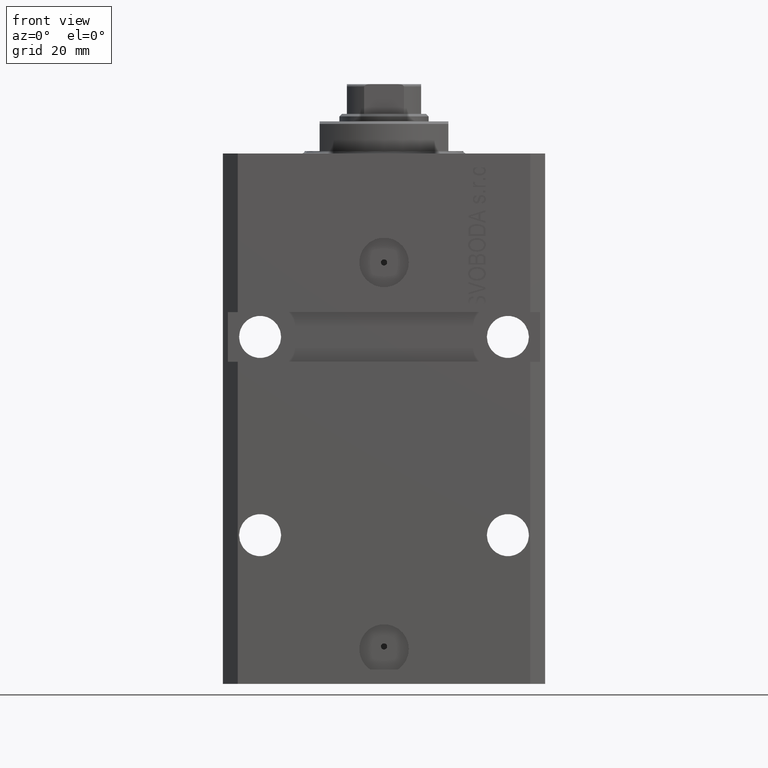
[diagram: clean part render]
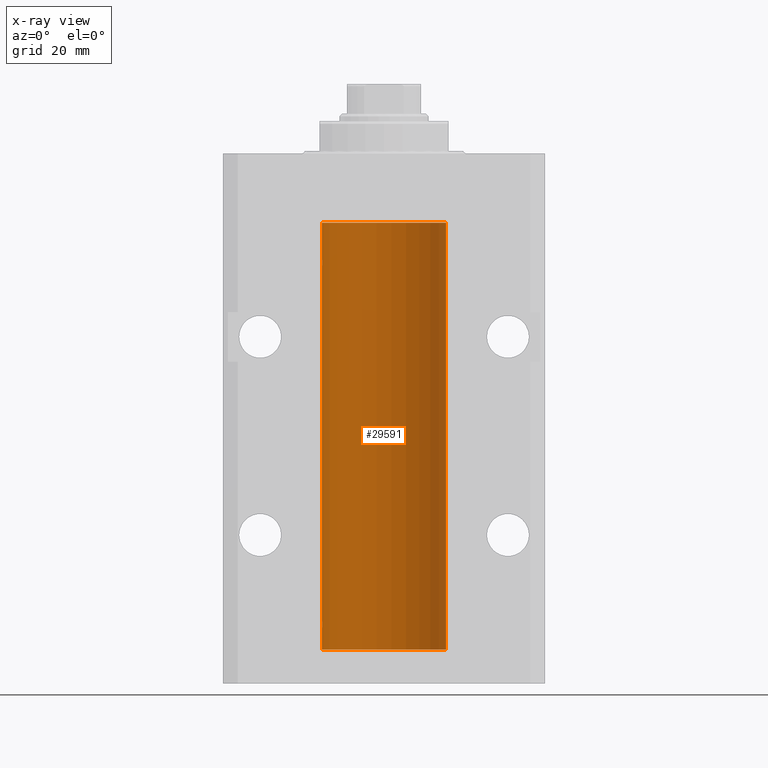
[diagram: x-ray — body ghosted, one internal face saturated and labeled with its STEP entity id]
A machine part, front view, then the same camera in x-ray: the body is ghosted and one INTERNAL B-rep face — a face not visible from any outside direction — is saturated and labeled: STEP entity #29591.
In plain terms, the highlighted cylindrical surface (partial cylindrical patch) has radius 12.5 mm, axis along (0, 0, 1).
Its self-contained STEP definition (entity closure, byte-faithful):
#260 = CARTESIAN_POINT ( 'NONE',  ( -12.50000000000000000, -1.522152011595579853E-14, -94.37500000000000000 ) ) ;
#1391 = CARTESIAN_POINT ( 'NONE',  ( -12.50000000000000000, 1.530808498934191521E-15, -13.99999999999999822 ) ) ;
#1940 = CARTESIAN_POINT ( 'NONE',  ( -12.49422197749724006, 0.3843754434364375916, -21.50047099568095277 ) ) ;
#3795 = LINE ( 'NONE', #33207, #24060 ) ;
#3899 = CARTESIAN_POINT ( 'NONE',  ( -12.49631005746706514, 0.3253680783018457756, -95.55856740465388555 ) ) ;
#5137 = EDGE_LOOP ( 'NONE', ( #15664, #40924, #43161, #22798, #29875, #26244, #45406, #41588 ) ) ;
#6735 = CYLINDRICAL_SURFACE ( 'NONE', #38576, 12.50000000000000000 ) ;
#7659 = EDGE_CURVE ( 'NONE', #29865, #19816, #25753, .T. ) ;
#7983 = CARTESIAN_POINT ( 'NONE',  ( -12.49915784441387068, 0.1636601911727894876, -94.39126818989429069 ) ) ;
#8238 = CARTESIAN_POINT ( 'NONE',  ( -12.48436376893640443, 0.6250290278979917513, -22.08132082824473486 ) ) ;
#8474 = CARTESIAN_POINT ( 'NONE',  ( -12.49625855304194033, 0.3150454781037993479, -94.45402800297488000 ) ) ;
#9100 = VECTOR ( 'NONE', #43386, 1000.000000000000000 ) ;
#10817 = DIRECTION ( 'NONE',  ( -0.000000000000000000, -0.000000000000000000, 1.000000000000000000 ) ) ;
#12348 = CARTESIAN_POINT ( 'NONE',  ( -12.49915784441386890, 0.1636601911727947889, -21.39126818989430490 ) ) ;
#13057 = CARTESIAN_POINT ( 'NONE',  ( -12.49625855304193678, 0.3150454781038042329, -21.45402800297484802 ) ) ;
#13417 = CARTESIAN_POINT ( 'NONE',  ( 12.50000000000000000, 0.000000000000000000, -100.0999999999999943 ) ) ;
#14112 = LINE ( 'NONE', #13417, #45395 ) ;
#14187 = EDGE_CURVE ( 'NONE', #16167, #19911, #35853, .T. ) ;
#15479 = CARTESIAN_POINT ( 'NONE',  ( -12.48520330846397997, 0.6088355886774070580, -95.16325431852561678 ) ) ;
#15664 = ORIENTED_EDGE ( 'NONE', *, *, #19358, .F. ) ;
#16167 = VERTEX_POINT ( 'NONE', #37960 ) ;
#16204 = CARTESIAN_POINT ( 'NONE',  ( -12.50000000000017941, 3.883381646606358354E-13, -22.62500000000358824 ) ) ;
#16666 = CARTESIAN_POINT ( 'NONE',  ( -12.48809959379011403, 0.5462151254764975317, -22.31461370481611795 ) ) ;
#17360 = CARTESIAN_POINT ( 'NONE',  ( 0.000000000000000000, 0.000000000000000000, -100.0999999999999943 ) ) ;
#17688 = VERTEX_POINT ( 'NONE', #32449 ) ;
#19291 = VERTEX_POINT ( 'NONE', #20051 ) ;
#19358 = EDGE_CURVE ( 'NONE', #19911, #19291, #36866, .T. ) ;
#19360 = CARTESIAN_POINT ( 'NONE',  ( -12.49999999999999289, 0.1631761135151241215, -22.62499999999984013 ) ) ;
#19816 = VERTEX_POINT ( 'NONE', #1391 ) ;
#19911 = VERTEX_POINT ( 'NONE', #35138 ) ;
#20051 = CARTESIAN_POINT ( 'NONE',  ( -12.50000000000017941, 3.883381774819353300E-13, -95.62500000000359535 ) ) ;
#20289 = CARTESIAN_POINT ( 'NONE',  ( -12.50000000000000000, 0.08260426088729219685, -21.37500000000000000 ) ) ;
#20835 = CARTESIAN_POINT ( 'NONE',  ( 0.000000000000000000, 0.000000000000000000, -100.0999999999999943 ) ) ;
#21226 = CARTESIAN_POINT ( 'NONE',  ( -12.50000000000000000, 1.530808498934191521E-15, -100.0999999999999943 ) ) ;
#22278 = CARTESIAN_POINT ( 'NONE',  ( 0.000000000000000000, 0.000000000000000000, -13.99999999999999822 ) ) ;
#22709 = CARTESIAN_POINT ( 'NONE',  ( -12.49999999999999112, 0.1631761135151224562, -95.62499999999980105 ) ) ;
#22798 = ORIENTED_EDGE ( 'NONE', *, *, #7659, .T. ) ;
#23193 = CARTESIAN_POINT ( 'NONE',  ( -12.50000000000017941, 3.883381774819353300E-13, -95.62500000000359535 ) ) ;
#24016 = EDGE_CURVE ( 'NONE', #16167, #29865, #14112, .T. ) ;
#24060 = VECTOR ( 'NONE', #10817, 1000.000000000000000 ) ;
#25753 = CIRCLE ( 'NONE', #37304, 12.50000000000000000 ) ;
#26090 = CARTESIAN_POINT ( 'NONE',  ( -12.48436813453758631, 0.6249418250771134886, -94.83668996798924411 ) ) ;
#26140 = EDGE_CURVE ( 'NONE', #44024, #17688, #37888, .T. ) ;
#26244 = ORIENTED_EDGE ( 'NONE', *, *, #33354, .T. ) ;
#26249 = VERTEX_POINT ( 'NONE', #41509 ) ;
#27042 = CARTESIAN_POINT ( 'NONE',  ( -12.48436813453758454, 0.6249418250771192618, -21.83668996798922635 ) ) ;
#28744 = DIRECTION ( 'NONE',  ( 0.000000000000000000, 0.000000000000000000, 1.000000000000000000 ) ) ;
#29591 = ADVANCED_FACE ( 'NONE', ( #43382 ), #6735, .F. ) ;
#29865 = VERTEX_POINT ( 'NONE', #36862 ) ;
#29875 = ORIENTED_EDGE ( 'NONE', *, *, #33053, .F. ) ;
#29973 = DIRECTION ( 'NONE',  ( 0.000000000000000000, 0.000000000000000000, 1.000000000000000000 ) ) ;
#30399 = CARTESIAN_POINT ( 'NONE',  ( -12.49422197749723829, 0.3843754434364257122, -94.50047099568094211 ) ) ;
#30411 = DIRECTION ( 'NONE',  ( -0.000000000000000000, -0.000000000000000000, 1.000000000000000000 ) ) ;
#30893 = CARTESIAN_POINT ( 'NONE',  ( -12.48520330846397819, 0.6088355886774127201, -22.16325431852561323 ) ) ;
#32449 = CARTESIAN_POINT ( 'NONE',  ( -12.50000000000017941, 3.883381646606358354E-13, -22.62500000000358824 ) ) ;
#32861 = DIRECTION ( 'NONE',  ( 1.000000000000000000, 0.000000000000000000, 0.000000000000000000 ) ) ;
#33053 = EDGE_CURVE ( 'NONE', #26249, #19816, #3795, .T. ) ;
#33076 = CARTESIAN_POINT ( 'NONE',  ( -12.50000000000000000, 0.08260426088727994276, -94.37499999999998579 ) ) ;
#33190 = CARTESIAN_POINT ( 'NONE',  ( -12.50000000000000000, -1.522152011595579853E-14, -94.37500000000000000 ) ) ;
#33207 = CARTESIAN_POINT ( 'NONE',  ( -12.50000000000000000, 1.530808498934191521E-15, -100.0999999999999943 ) ) ;
#33309 = CARTESIAN_POINT ( 'NONE',  ( -12.48436376893640620, 0.6250290278979871994, -95.08132082824478459 ) ) ;
#33354 = EDGE_CURVE ( 'NONE', #26249, #17688, #41066, .T. ) ;
#34978 = CARTESIAN_POINT ( 'NONE',  ( -12.49011732893843529, 0.5003763274120274218, -22.38348111289287701 ) ) ;
#35138 = CARTESIAN_POINT ( 'NONE',  ( -12.50000000000000000, 1.530808498934191521E-15, -100.0999999999999943 ) ) ;
#35853 = CIRCLE ( 'NONE', #42017, 12.50000000000000000 ) ;
#36862 = CARTESIAN_POINT ( 'NONE',  ( 12.50000000000000000, 0.000000000000000000, -13.99999999999999822 ) ) ;
#36866 = LINE ( 'NONE', #21226, #9100 ) ;
#37304 = AXIS2_PLACEMENT_3D ( 'NONE', #22278, #29973, #32861 ) ;
#37875 = CARTESIAN_POINT ( 'NONE',  ( -12.49011732893843529, 0.5003763274120199833, -95.38348111289285214 ) ) ;
#37888 = LINE ( 'NONE', #41260, #46898 ) ;
#37892 = CARTESIAN_POINT ( 'NONE',  ( -12.48810268015257563, 0.5573155909661349217, -21.67347410093867666 ) ) ;
#37960 = CARTESIAN_POINT ( 'NONE',  ( 12.50000000000000000, 0.000000000000000000, -100.0999999999999943 ) ) ;
#38082 = B_SPLINE_CURVE_WITH_KNOTS ( 'NONE', 3,
 ( #260, #33076, #7983, #8474, #30399, #44656, #26090, #33309, #15479, #40790, #37875, #3899, #22709, #23193 ),
 .UNSPECIFIED., .F., .F.,
 ( 4, 2, 2, 2, 2, 2, 4 ),
 ( 3.486178718436696769E-18, 0.0002442924852390829216, 0.0004885849704781623738, 0.0009771699409563507684, 0.001221462426195465403, 0.001465754911434580254, 0.001954339881912780900 ),
 .UNSPECIFIED. ) ;
#38576 = AXIS2_PLACEMENT_3D ( 'NONE', #17360, #39310, #43875 ) ;
#39213 = DIRECTION ( 'NONE',  ( -0.000000000000000000, -0.000000000000000000, 1.000000000000000000 ) ) ;
#39310 = DIRECTION ( 'NONE',  ( -0.000000000000000000, -0.000000000000000000, 1.000000000000000000 ) ) ;
#40790 = CARTESIAN_POINT ( 'NONE',  ( -12.48809959379011403, 0.5462151254764922026, -95.31461370481613926 ) ) ;
#40924 = ORIENTED_EDGE ( 'NONE', *, *, #14187, .F. ) ;
#41066 = B_SPLINE_CURVE_WITH_KNOTS ( 'NONE', 3,
 ( #45366, #20289, #12348, #13057, #1940, #37892, #27042, #8238, #30893, #16666, #34978, #46071, #19360, #16204 ),
 .UNSPECIFIED., .F., .F.,
 ( 4, 2, 2, 2, 2, 2, 4 ),
 ( 2.030551168097110502E-20, 0.0002442924852390969078, 0.0004885849704781938157, 0.0009771699409563880650, 0.001221462426195485135, 0.001465754911434582423, 0.001954339881912776130 ),
 .UNSPECIFIED. ) ;
#41260 = CARTESIAN_POINT ( 'NONE',  ( -12.50000000000000000, 1.530808498934191521E-15, -100.0999999999999943 ) ) ;
#41509 = CARTESIAN_POINT ( 'NONE',  ( -12.50000000000000000, -2.089494013101375120E-17, -21.37499999999999645 ) ) ;
#41588 = ORIENTED_EDGE ( 'NONE', *, *, #44641, .T. ) ;
#42017 = AXIS2_PLACEMENT_3D ( 'NONE', #20835, #28744, #42989 ) ;
#42989 = DIRECTION ( 'NONE',  ( 1.000000000000000000, 0.000000000000000000, 0.000000000000000000 ) ) ;
#43161 = ORIENTED_EDGE ( 'NONE', *, *, #24016, .T. ) ;
#43382 = FACE_OUTER_BOUND ( 'NONE', #5137, .T. ) ;
#43386 = DIRECTION ( 'NONE',  ( -0.000000000000000000, -0.000000000000000000, 1.000000000000000000 ) ) ;
#43875 = DIRECTION ( 'NONE',  ( 1.000000000000000000, 0.000000000000000000, 0.000000000000000000 ) ) ;
#44024 = VERTEX_POINT ( 'NONE', #33190 ) ;
#44641 = EDGE_CURVE ( 'NONE', #44024, #19291, #38082, .T. ) ;
#44656 = CARTESIAN_POINT ( 'NONE',  ( -12.48810268015257741, 0.5573155909661239304, -94.67347410093871929 ) ) ;
#45366 = CARTESIAN_POINT ( 'NONE',  ( -12.50000000000000000, -2.089494013101375120E-17, -21.37499999999999645 ) ) ;
#45395 = VECTOR ( 'NONE', #39213, 1000.000000000000000 ) ;
#45406 = ORIENTED_EDGE ( 'NONE', *, *, #26140, .F. ) ;
#46071 = CARTESIAN_POINT ( 'NONE',  ( -12.49631005746706336, 0.3253680783018528255, -22.55856740465392463 ) ) ;
#46898 = VECTOR ( 'NONE', #30411, 1000.000000000000000 ) ;